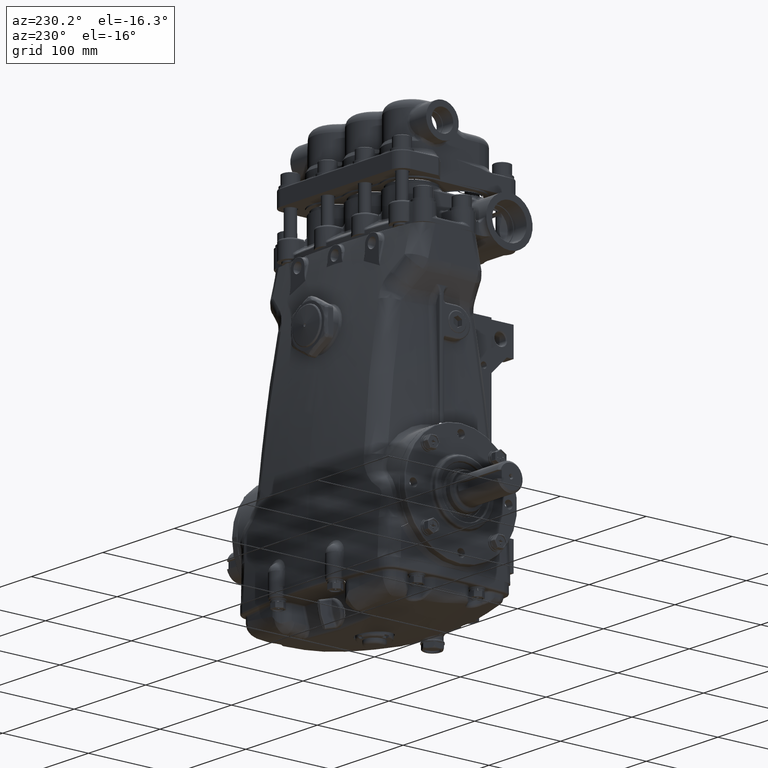
[diagram: clean part render]
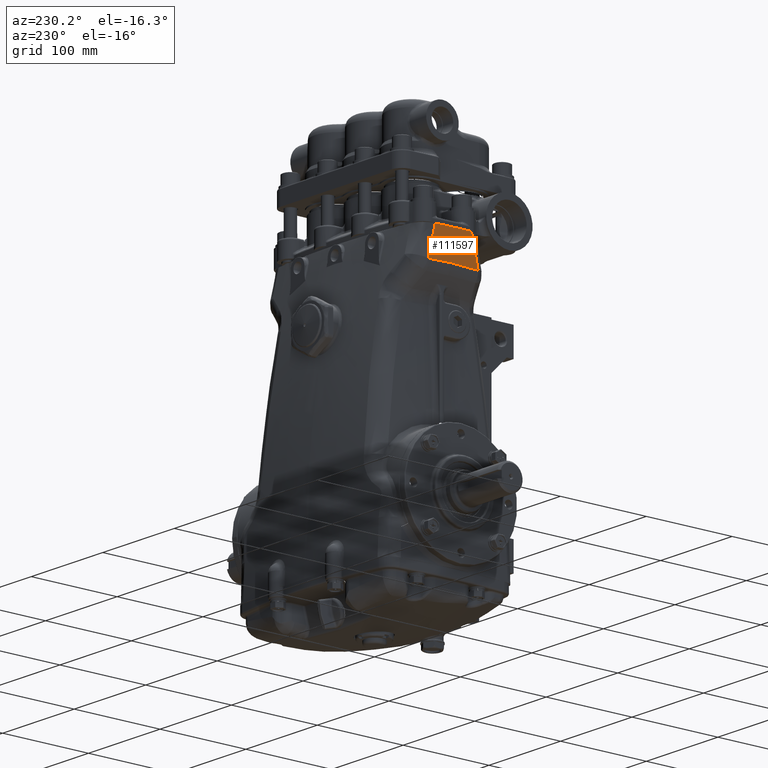
[diagram: same view with one face highlighted and labeled with its STEP entity id]
A machine part, auxiliary view. The second image highlights one B-rep face of the part: STEP entity #111597.
In plain terms, the highlighted cylindrical surface (partial cylindrical patch) has radius 600 mm, axis along (-0, -0, 1).
Its self-contained STEP definition (entity closure, byte-faithful):
#1077 = EDGE_CURVE ( 'NONE', #28959, #50182, #40269, .T. ) ;
#2025 = DIRECTION ( 'NONE',  ( 1.000000000000000000, 0.000000000000000000, 0.000000000000000000 ) ) ;
#4866 = CARTESIAN_POINT ( 'NONE',  ( -4.190447273871903633, 1.022770190645900579, 8.570445802242577571 ) ) ;
#4936 = CARTESIAN_POINT ( 'NONE',  ( -4.197372723409396045, 0.8484038907271594931, 9.360091271905533361 ) ) ;
#5237 = ORIENTED_EDGE ( 'NONE', *, *, #54795, .T. ) ;
#5277 = EDGE_CURVE ( 'NONE', #37298, #28959, #89820, .T. ) ;
#9036 = CARTESIAN_POINT ( 'NONE',  ( -4.178597540863881576, -1.266958930657705595, 8.557920139176829366 ) ) ;
#10150 = CARTESIAN_POINT ( 'NONE',  ( -4.201262077061691080, -0.8449940842684898756, 8.580018061969692411 ) ) ;
#11511 = AXIS2_PLACEMENT_3D ( 'NONE', #54088, #34686, #36352 ) ;
#11694 = EDGE_CURVE ( 'NONE', #50182, #59104, #99135, .T. ) ;
#12990 = CARTESIAN_POINT ( 'NONE',  ( -4.193404144697629121, -0.9520756173404020251, 9.921259842519685179 ) ) ;
#14025 = CARTESIAN_POINT ( 'NONE',  ( -4.190725967451764511, 1.016320639117393121, 8.569745355100033990 ) ) ;
#21568 = CARTESIAN_POINT ( 'NONE',  ( -4.191145638069953883, -1.006868216331256782, 9.694568287079688318 ) ) ;
#22689 = CARTESIAN_POINT ( 'NONE',  ( -4.192298116763032212, -0.9794950935232134004, 9.807919165555654573 ) ) ;
#23539 = CARTESIAN_POINT ( 'NONE',  ( -4.212598425196850016, 0.3367542378940413528, 8.591071001401475726 ) ) ;
#23776 = CARTESIAN_POINT ( 'NONE',  ( -4.201844081373298678, 0.7127156374369486569, 9.921259842519685179 ) ) ;
#26160 = CARTESIAN_POINT ( 'NONE',  ( -4.212598425196850016, 0.000000000000000000, 8.591071001401475726 ) ) ;
#26590 = ORIENTED_EDGE ( 'NONE', *, *, #1077, .T. ) ;
#28959 = VERTEX_POINT ( 'NONE', #54466 ) ;
#31209 = CARTESIAN_POINT ( 'NONE',  ( -4.194440760779563071, 0.9275228688500393170, 9.022843040680060156 ) ) ;
#33161 = ORIENTED_EDGE ( 'NONE', *, *, #86123, .T. ) ;
#34686 = DIRECTION ( 'NONE',  ( -0.000000000000000000, -0.000000000000000000, -1.000000000000000000 ) ) ;
#35767 = CARTESIAN_POINT ( 'NONE',  ( 19.40944881889764417, 0.000000000000000000, 5.984251968503937036 ) ) ;
#36352 = DIRECTION ( 'NONE',  ( 1.000000000000000000, 0.000000000000000000, 0.000000000000000000 ) ) ;
#37298 = VERTEX_POINT ( 'NONE', #46656 ) ;
#39335 = VERTEX_POINT ( 'NONE', #77653 ) ;
#40269 = B_SPLINE_CURVE_WITH_KNOTS ( 'NONE', 3,
 ( #47252, #65534, #110156, #74124, #99317, #21568, #22689, #12990 ),
 .UNSPECIFIED., .F., .F.,
 ( 4, 2, 2, 4 ),
 ( 8.441528768080324345E-17, 0.01777122523369652207, 0.02665683785054477964, 0.03554245046739303721 ),
 .UNSPECIFIED. ) ;
#42793 = ORIENTED_EDGE ( 'NONE', *, *, #52956, .T. ) ;
#46168 = ORIENTED_EDGE ( 'NONE', *, *, #11694, .T. ) ;
#46656 = CARTESIAN_POINT ( 'NONE',  ( -4.212598425196850016, 0.000000000000000000, 8.591071001401475726 ) ) ;
#47252 = CARTESIAN_POINT ( 'NONE',  ( -4.178597540863881576, -1.266958930657705595, 8.557920139176829366 ) ) ;
#48860 = CARTESIAN_POINT ( 'NONE',  ( -4.191001658274570829, 1.009877852402954579, 8.570014153652254052 ) ) ;
#48865 = ORIENTED_EDGE ( 'NONE', *, *, #5277, .T. ) ;
#49815 =( BOUNDED_CURVE ( )  B_SPLINE_CURVE ( 3, ( #75554, #83587, #23539, #110467 ),
 .UNSPECIFIED., .F., .T. ) 
 B_SPLINE_CURVE_WITH_KNOTS ( ( 4, 4 ),
 ( 6.240420777955844933, 6.283185307179586232 ),
 .UNSPECIFIED. ) 
 CURVE ( )  GEOMETRIC_REPRESENTATION_ITEM ( )  RATIONAL_B_SPLINE_CURVE ( ( 1.000000000000000000, 0.9998476053930722696, 0.9998476053930722696, 1.000000000000000000 ) ) 
 REPRESENTATION_ITEM ( '' )  );
#50182 = VERTEX_POINT ( 'NONE', #77146 ) ;
#52956 = EDGE_CURVE ( 'NONE', #39335, #53721, #71833, .T. ) ;
#53721 = VERTEX_POINT ( 'NONE', #66866 ) ;
#54088 = CARTESIAN_POINT ( 'NONE',  ( 19.40944881889764417, 0.000000000000000000, 9.921259842519685179 ) ) ;
#54466 = CARTESIAN_POINT ( 'NONE',  ( -4.178597540863881576, -1.266958930657705595, 8.557920139176829366 ) ) ;
#54795 = EDGE_CURVE ( 'NONE', #59104, #39335, #55359, .T. ) ;
#55359 = B_SPLINE_CURVE_WITH_KNOTS ( 'NONE', 3,
 ( #23776, #101546, #67777, #67207, #4936, #31209, #66072, #58082 ),
 .UNSPECIFIED., .F., .F.,
 ( 4, 2, 2, 4 ),
 ( 5.721958498152796815E-17, 0.008798902184599680099, 0.01759780436919930122, 0.03519560873839862325 ),
 .UNSPECIFIED. ) ;
#58082 = CARTESIAN_POINT ( 'NONE',  ( -4.190177169133952439, 1.028965124411883592, 8.572244587643758962 ) ) ;
#59104 = VERTEX_POINT ( 'NONE', #68704 ) ;
#65534 = CARTESIAN_POINT ( 'NONE',  ( -4.181271141936835356, -1.217182237404028644, 8.785765683512584800 ) ) ;
#66072 = CARTESIAN_POINT ( 'NONE',  ( -4.192359111510105762, 0.9789216168303149779, 8.797694800230402734 ) ) ;
#66866 = CARTESIAN_POINT ( 'NONE',  ( -4.191001658274570829, 1.009877852402954579, 8.570014153652254052 ) ) ;
#67207 = CARTESIAN_POINT ( 'NONE',  ( -4.198318263267009520, 0.8216943957092699424, 9.472427057561722208 ) ) ;
#67777 = CARTESIAN_POINT ( 'NONE',  ( -4.200138917175134878, 0.7676035554626290391, 9.696938378720981078 ) ) ;
#68704 = CARTESIAN_POINT ( 'NONE',  ( -4.201844081373298678, 0.7127156374369486569, 9.921259842519685179 ) ) ;
#71193 = DIRECTION ( 'NONE',  ( -0.000000000000000000, -0.000000000000000000, 1.000000000000000000 ) ) ;
#71833 = B_SPLINE_CURVE_WITH_KNOTS ( 'NONE', 3,
 ( #74032, #4866, #14025, #48860 ),
 .UNSPECIFIED., .F., .F.,
 ( 4, 4 ),
 ( 0.000000000000000000, 0.0004896494461439415474 ),
 .UNSPECIFIED. ) ;
#74032 = CARTESIAN_POINT ( 'NONE',  ( -4.190177169133952439, 1.028965124411883592, 8.572244587643758962 ) ) ;
#74124 = CARTESIAN_POINT ( 'NONE',  ( -4.187575941888294295, -1.087303490569880404, 9.354127904588528608 ) ) ;
#75554 = CARTESIAN_POINT ( 'NONE',  ( -4.191001658274570829, 1.009877852402954579, 8.570014153652254052 ) ) ;
#77146 = CARTESIAN_POINT ( 'NONE',  ( -4.193404144697629121, -0.9520756173404020251, 9.921259842519685179 ) ) ;
#77653 = CARTESIAN_POINT ( 'NONE',  ( -4.190177169133952439, 1.028965124411883592, 8.572244587643758962 ) ) ;
#80346 = FACE_OUTER_BOUND ( 'NONE', #105015, .T. ) ;
#80908 = CYLINDRICAL_SURFACE ( 'NONE', #110281, 23.62204724409449241 ) ;
#83587 = CARTESIAN_POINT ( 'NONE',  ( -4.205398405645274451, 0.6734314964935158576, 8.584050982338691682 ) ) ;
#86123 = EDGE_CURVE ( 'NONE', #53721, #37298, #49815, .T. ) ;
#87350 = CARTESIAN_POINT ( 'NONE',  ( -4.212598425196850016, -0.4225730857370547655, 8.591071001401473950 ) ) ;
#89820 =( BOUNDED_CURVE ( )  B_SPLINE_CURVE ( 3, ( #26160, #87350, #10150, #9036 ),
 .UNSPECIFIED., .F., .T. ) 
 B_SPLINE_CURVE_WITH_KNOTS ( ( 4, 4 ),
 ( 0.000000000000000000, 0.05366034291223175517 ),
 .UNSPECIFIED. ) 
 CURVE ( )  GEOMETRIC_REPRESENTATION_ITEM ( )  RATIONAL_B_SPLINE_CURVE ( ( 1.000000000000000000, 0.9997600616938575602, 0.9997600616938575602, 1.000000000000000000 ) ) 
 REPRESENTATION_ITEM ( '' )  );
#99135 = CIRCLE ( 'NONE', #11511, 23.62204724409449241 ) ;
#99317 = CARTESIAN_POINT ( 'NONE',  ( -4.188786727426508705, -1.060717411712941205, 9.467659929172162592 ) ) ;
#101546 = CARTESIAN_POINT ( 'NONE',  ( -4.201016792081604834, 0.7401225985774132488, 9.809090046414086217 ) ) ;
#105015 = EDGE_LOOP ( 'NONE', ( #33161, #48865, #26590, #46168, #5237, #42793 ) ) ;
#110156 = CARTESIAN_POINT ( 'NONE',  ( -4.183859935461835988, -1.166044502481793366, 9.013297796355557168 ) ) ;
#110281 = AXIS2_PLACEMENT_3D ( 'NONE', #35767, #71193, #2025 ) ;
#110467 = CARTESIAN_POINT ( 'NONE',  ( -4.212598425196850016, 0.000000000000000000, 8.591071001401475726 ) ) ;
#111597 = ADVANCED_FACE ( 'NONE', ( #80346 ), #80908, .T. ) ;